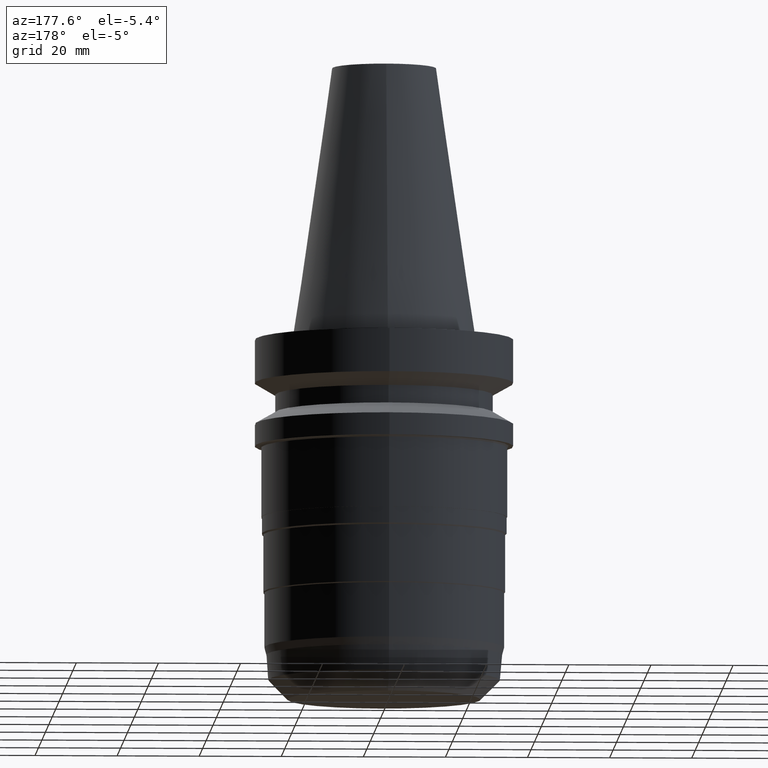
[diagram: clean part render]
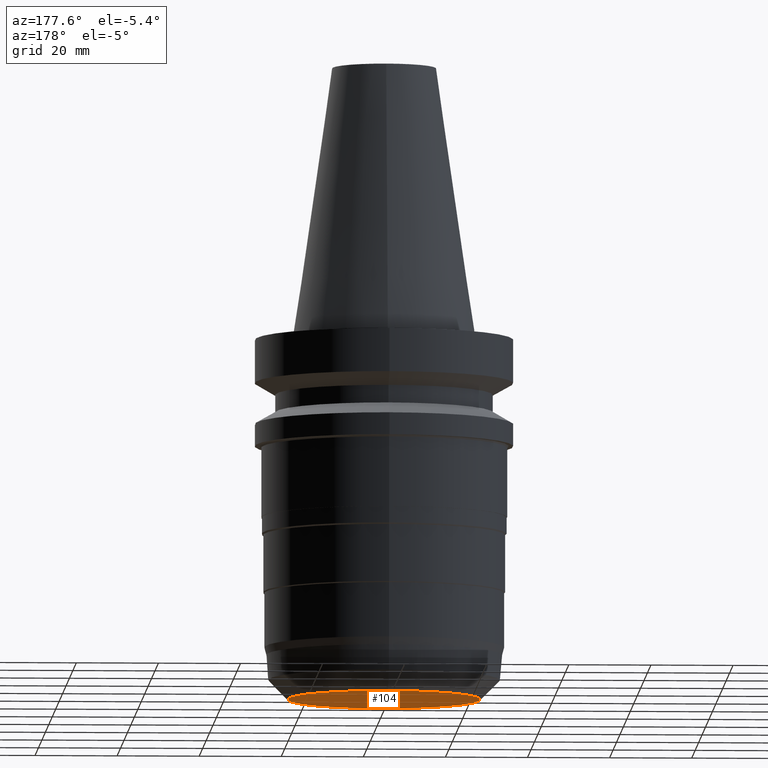
[diagram: same view with one face highlighted and labeled with its STEP entity id]
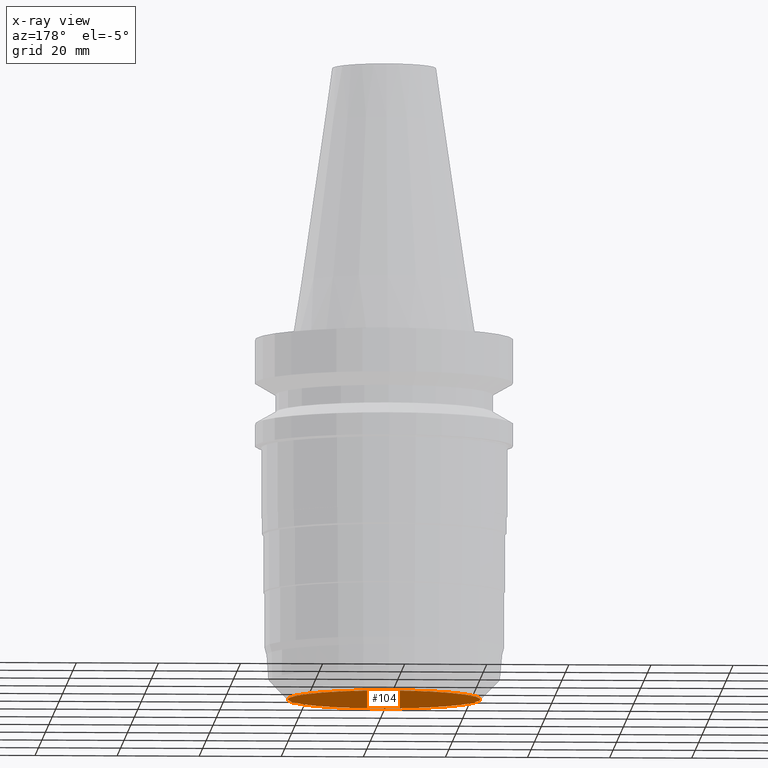
[diagram: x-ray of the same camera — body ghosted, the highlighted face saturated]
A machine part, auxiliary view. The second image highlights one B-rep face of the part: STEP entity #104.
The next image is the same camera in x-ray: the body ghosted, the highlighted face saturated — about 0% of this face is hidden behind the body in this view.
In plain terms, the highlighted planar face has unit normal (0, 0, -1).
Its self-contained STEP definition (entity closure, byte-faithful):
#104=ADVANCED_FACE('Unnamed[1]',(#253),#254,.T.);
#150=EDGE_CURVE('Unnamed[1]',#323,#323,#324,.T.);
#253=FACE_OUTER_BOUND('',#447,.T.);
#254=PLANE('',#448);
#323=VERTEX_POINT('',#535);
#324=CIRCLE('',#536,23.5);
#447=EDGE_LOOP('',(#659));
#448=AXIS2_PLACEMENT_3D('',#660,#661,#662);
#535=CARTESIAN_POINT('',(5.44355502220999E-015,23.5,-88.9));
#536=AXIS2_PLACEMENT_3D('',#735,#736,#737);
#659=ORIENTED_EDGE('',*,*,#150,.T.);
#660=CARTESIAN_POINT('',(5.44355502220999E-015,11.75,-88.9));
#661=DIRECTION('',(6.12323399573677E-017,1.22464679914735E-016,-1.0));
#662=DIRECTION('',(-1.23259516440783E-032,1.0,1.22464679914735E-016));
#735=CARTESIAN_POINT('',(5.44355502220999E-015,1.088711004442E-014,-88.9));
#736=DIRECTION('',(6.12323399573677E-017,1.22464679914704E-016,-1.0));
#737=DIRECTION('',(-1.23259516440783E-032,1.0,1.22464679914704E-016));